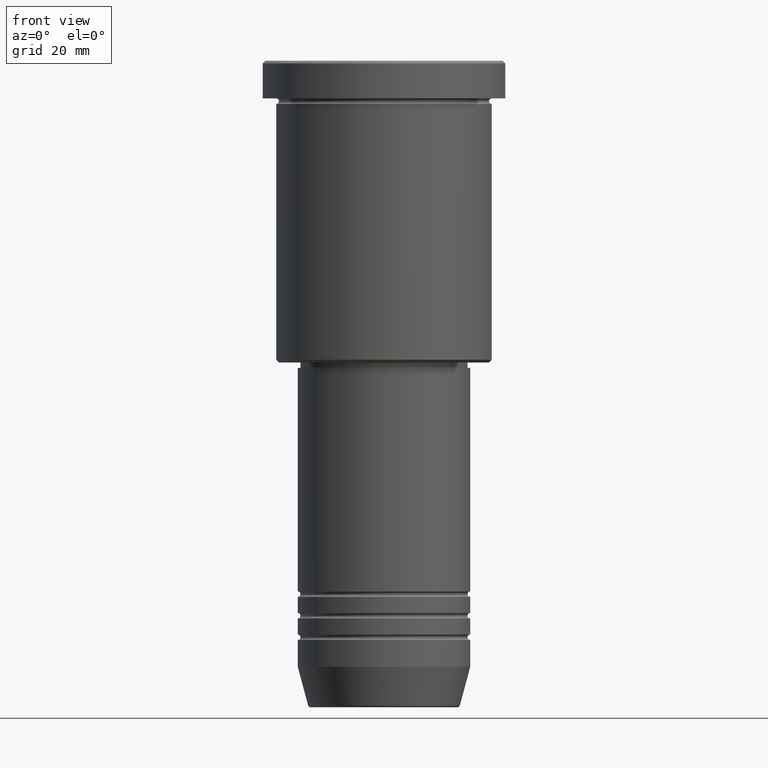
[diagram: clean part render]
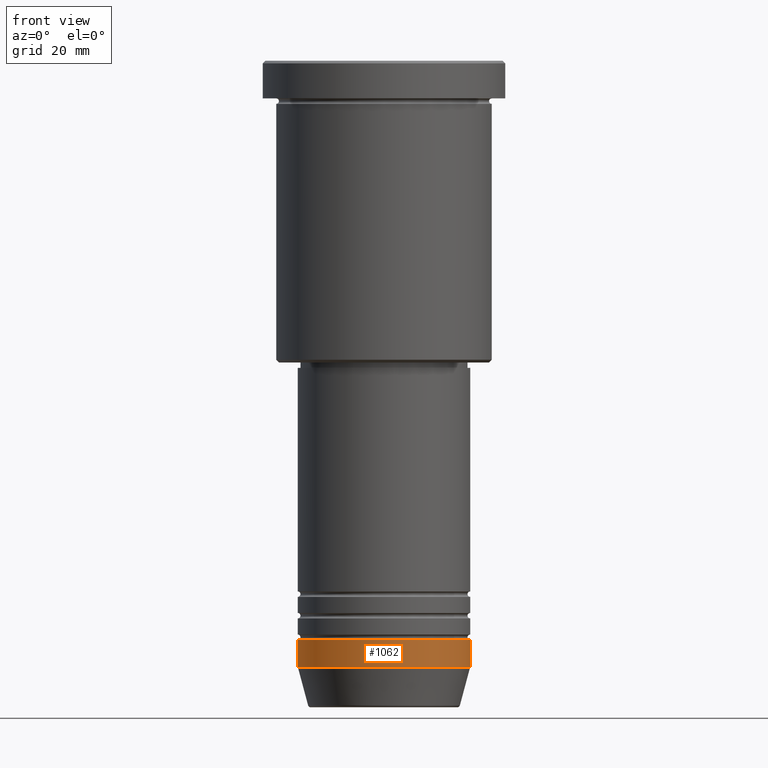
[diagram: same view with one face highlighted and labeled with its STEP entity id]
A machine part, front view. The second image highlights one B-rep face of the part: STEP entity #1062.
In plain terms, the highlighted cylindrical surface (partial cylindrical patch) has radius 16 mm, axis along (-0, -0, 1).
Its self-contained STEP definition (entity closure, byte-faithful):
#127 = EDGE_LOOP ( 'NONE', ( #1118, #920, #1042, #1074 ) ) ;
#151 = AXIS2_PLACEMENT_3D ( 'NONE', #200, #377, #742 ) ;
#178 = DIRECTION ( 'NONE',  ( -0.000000000000000000, -0.000000000000000000, 1.000000000000000000 ) ) ;
#200 = CARTESIAN_POINT ( 'NONE',  ( 0.000000000000000000, 0.000000000000000000, -107.4999999999999858 ) ) ;
#225 = CARTESIAN_POINT ( 'NONE',  ( -16.00000000000000000, 1.959434878635765131E-15, -112.4999999999999858 ) ) ;
#232 = CARTESIAN_POINT ( 'NONE',  ( 0.000000000000000000, 0.000000000000000000, 0.000000000000000000 ) ) ;
#312 = AXIS2_PLACEMENT_3D ( 'NONE', #232, #591, #1060 ) ;
#342 = VERTEX_POINT ( 'NONE', #774 ) ;
#359 = LINE ( 'NONE', #435, #577 ) ;
#377 = DIRECTION ( 'NONE',  ( -0.000000000000000000, -0.000000000000000000, 1.000000000000000000 ) ) ;
#420 = EDGE_CURVE ( 'NONE', #491, #342, #708, .T. ) ;
#435 = CARTESIAN_POINT ( 'NONE',  ( -16.00000000000000000, 1.959434878635765131E-15, 0.000000000000000000 ) ) ;
#444 = DIRECTION ( 'NONE',  ( -0.000000000000000000, -0.000000000000000000, 1.000000000000000000 ) ) ;
#485 = EDGE_CURVE ( 'NONE', #610, #585, #597, .T. ) ;
#491 = VERTEX_POINT ( 'NONE', #801 ) ;
#539 = AXIS2_PLACEMENT_3D ( 'NONE', #782, #884, #1140 ) ;
#545 = CARTESIAN_POINT ( 'NONE',  ( 16.00000000000000000, 0.000000000000000000, 0.000000000000000000 ) ) ;
#577 = VECTOR ( 'NONE', #444, 1000.000000000000000 ) ;
#585 = VERTEX_POINT ( 'NONE', #586 ) ;
#586 = CARTESIAN_POINT ( 'NONE',  ( 16.00000000000000000, 0.000000000000000000, -112.4999999999999858 ) ) ;
#591 = DIRECTION ( 'NONE',  ( -0.000000000000000000, -0.000000000000000000, 1.000000000000000000 ) ) ;
#597 = CIRCLE ( 'NONE', #539, 16.00000000000000000 ) ;
#610 = VERTEX_POINT ( 'NONE', #225 ) ;
#619 = LINE ( 'NONE', #545, #827 ) ;
#697 = EDGE_CURVE ( 'NONE', #585, #342, #619, .T. ) ;
#708 = CIRCLE ( 'NONE', #151, 16.00000000000000000 ) ;
#742 = DIRECTION ( 'NONE',  ( 1.000000000000000000, 0.000000000000000000, 0.000000000000000000 ) ) ;
#774 = CARTESIAN_POINT ( 'NONE',  ( 16.00000000000000000, 0.000000000000000000, -107.4999999999999858 ) ) ;
#782 = CARTESIAN_POINT ( 'NONE',  ( 0.000000000000000000, 0.000000000000000000, -112.4999999999999858 ) ) ;
#801 = CARTESIAN_POINT ( 'NONE',  ( -16.00000000000000000, 1.959434878635765131E-15, -107.4999999999999858 ) ) ;
#827 = VECTOR ( 'NONE', #178, 1000.000000000000000 ) ;
#884 = DIRECTION ( 'NONE',  ( -0.000000000000000000, -0.000000000000000000, 1.000000000000000000 ) ) ;
#920 = ORIENTED_EDGE ( 'NONE', *, *, #485, .T. ) ;
#964 = CYLINDRICAL_SURFACE ( 'NONE', #312, 16.00000000000000000 ) ;
#1042 = ORIENTED_EDGE ( 'NONE', *, *, #697, .T. ) ;
#1045 = FACE_OUTER_BOUND ( 'NONE', #127, .T. ) ;
#1060 = DIRECTION ( 'NONE',  ( 1.000000000000000000, 0.000000000000000000, 0.000000000000000000 ) ) ;
#1062 = ADVANCED_FACE ( 'NONE', ( #1045 ), #964, .T. ) ;
#1074 = ORIENTED_EDGE ( 'NONE', *, *, #420, .F. ) ;
#1117 = EDGE_CURVE ( 'NONE', #610, #491, #359, .T. ) ;
#1118 = ORIENTED_EDGE ( 'NONE', *, *, #1117, .F. ) ;
#1140 = DIRECTION ( 'NONE',  ( 1.000000000000000000, 0.000000000000000000, 0.000000000000000000 ) ) ;